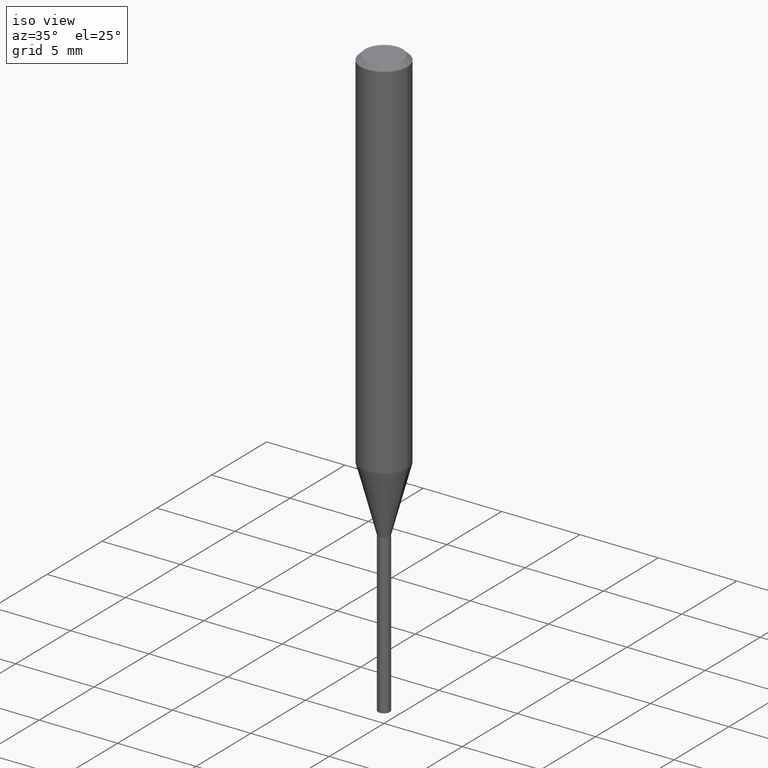
[diagram: clean part render]
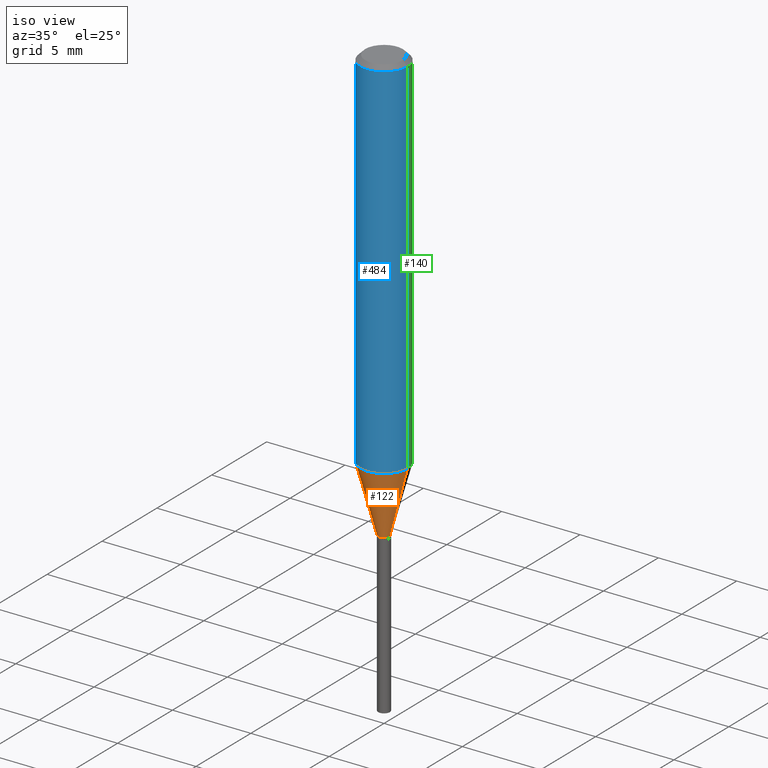
[diagram: same view with three faces highlighted in distinct colors, each labeled with its STEP entity id]
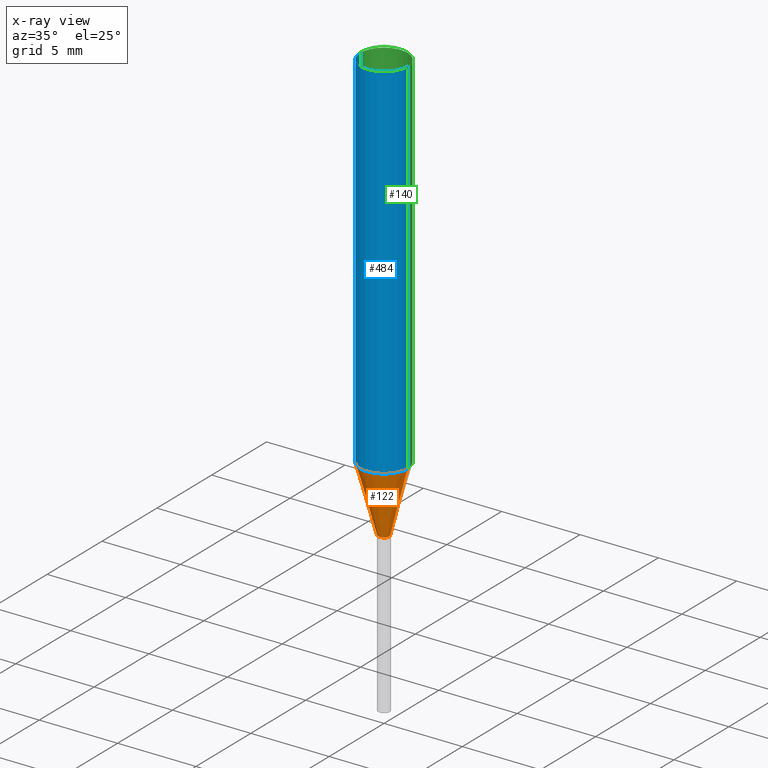
[diagram: x-ray of the same camera — body ghosted, the three highlighted faces saturated]
A machine part, iso view with three faces highlighted in distinct colors.
The next image is the same camera in x-ray (body ghosted, the three faces saturated) — at least one of them is partly hidden behind the body in this view.
Their STEP definitions:

[orange] entity #122 — the highlighted conical surface has half-angle 15 deg.
#6 = VERTEX_POINT ( 'NONE', #464 ) ;
#7 = EDGE_CURVE ( 'NONE', #430, #453, #425, .T. ) ;
#14 = ORIENTED_EDGE ( 'NONE', *, *, #7, .F. ) ;
#21 = ORIENTED_EDGE ( 'NONE', *, *, #226, .T. ) ;
#28 = DIRECTION ( 'NONE',  ( 1.000000000000000000, -6.982962677686268288E-15, 0.000000000000000000 ) ) ;
#33 = DIRECTION ( 'NONE',  ( 1.000000000000000000, -6.982962677686255667E-15, 0.000000000000000000 ) ) ;
#50 = CIRCLE ( 'NONE', #487, 0.01455000000000000043 ) ;
#80 = ORIENTED_EDGE ( 'NONE', *, *, #251, .T. ) ;
#109 = VECTOR ( 'NONE', #416, 39.37007874015748854 ) ;
#113 = CARTESIAN_POINT ( 'NONE',  ( -0.05905000000000010241, -2.806636156120838510E-15, -0.9240237390631849124 ) ) ;
#122 = ADVANCED_FACE ( 'NONE', ( #245 ), #364, .T. ) ;
#130 = DIRECTION ( 'NONE',  ( -2.445468806185136597E-29, 3.491481338843145583E-15, 1.000000000000000000 ) ) ;
#144 = CARTESIAN_POINT ( 'NONE',  ( 2.259671230053572766E-29, -3.226211641587178003E-15, -0.9240237390631849124 ) ) ;
#154 = CIRCLE ( 'NONE', #402, 0.05905000000000010241 ) ;
#170 = DIRECTION ( 'NONE',  ( 0.2588190451025212391, 1.565188264969622362E-15, 0.9659258262890679791 ) ) ;
#187 = DIRECTION ( 'NONE',  ( -2.445468806185136597E-29, 3.491481338843145583E-15, 1.000000000000000000 ) ) ;
#194 = ORIENTED_EDGE ( 'NONE', *, *, #196, .F. ) ;
#196 = EDGE_CURVE ( 'NONE', #453, #6, #154, .T. ) ;
#199 = EDGE_LOOP ( 'NONE', ( #14, #80, #21, #194 ) ) ;
#211 = DIRECTION ( 'NONE',  ( -2.445468806185136597E-29, 3.491481338843145583E-15, 1.000000000000000000 ) ) ;
#213 = CARTESIAN_POINT ( 'NONE',  ( -0.01455000000000000043, -3.702679839419818518E-15, -1.090099999999999847 ) ) ;
#222 = VECTOR ( 'NONE', #170, 39.37007874015748854 ) ;
#226 = EDGE_CURVE ( 'NONE', #305, #6, #377, .T. ) ;
#245 = FACE_OUTER_BOUND ( 'NONE', #199, .T. ) ;
#246 = AXIS2_PLACEMENT_3D ( 'NONE', #330, #130, #373 ) ;
#251 = EDGE_CURVE ( 'NONE', #430, #305, #50, .T. ) ;
#258 = CARTESIAN_POINT ( 'NONE',  ( 2.665805545622417047E-29, -3.806063807472912753E-15, -1.090099999999999847 ) ) ;
#305 = VERTEX_POINT ( 'NONE', #317 ) ;
#317 = CARTESIAN_POINT ( 'NONE',  ( 0.01455000000000000043, -3.907665914433247416E-15, -1.090099999999999847 ) ) ;
#330 = CARTESIAN_POINT ( 'NONE',  ( 2.665805545622417047E-29, -3.806063807472912753E-15, -1.090099999999999847 ) ) ;
#336 = CARTESIAN_POINT ( 'NONE',  ( -0.01455000000000000043, -3.709488228030561988E-15, -1.090099999999999847 ) ) ;
#364 = CONICAL_SURFACE ( 'NONE', #246, 0.01455000000000000043, 0.2617993877991499629 ) ;
#373 = DIRECTION ( 'NONE',  ( 1.000000000000000000, -6.982962677686255667E-15, 0.000000000000000000 ) ) ;
#377 = LINE ( 'NONE', #474, #222 ) ;
#402 = AXIS2_PLACEMENT_3D ( 'NONE', #144, #211, #28 ) ;
#416 = DIRECTION ( 'NONE',  ( -0.2588190451025212391, 5.211531920934549464E-15, 0.9659258262890679791 ) ) ;
#425 = LINE ( 'NONE', #213, #109 ) ;
#430 = VERTEX_POINT ( 'NONE', #336 ) ;
#453 = VERTEX_POINT ( 'NONE', #113 ) ;
#464 = CARTESIAN_POINT ( 'NONE',  ( 0.05905000000000010241, -3.638555587704553318E-15, -0.9240237390631849124 ) ) ;
#474 = CARTESIAN_POINT ( 'NONE',  ( 0.01455000000000000043, -3.907665914433247416E-15, -1.090099999999999847 ) ) ;
#487 = AXIS2_PLACEMENT_3D ( 'NONE', #258, #187, #33 ) ;

[blue] entity #484 — the highlighted cylindrical surface (edge-blend (fillet) strip) has radius 1.4999 mm, axis along (-0, 0, 1).
#6 = VERTEX_POINT ( 'NONE', #464 ) ;
#16 = ORIENTED_EDGE ( 'NONE', *, *, #342, .F. ) ;
#28 = DIRECTION ( 'NONE',  ( 1.000000000000000000, -6.982962677686268288E-15, 0.000000000000000000 ) ) ;
#39 = CARTESIAN_POINT ( 'NONE',  ( 0.000000000000000000, 0.000000000000000000, 0.000000000000000000 ) ) ;
#48 = VERTEX_POINT ( 'NONE', #58 ) ;
#58 = CARTESIAN_POINT ( 'NONE',  ( 0.05904999999999999832, -4.535783407291118600E-16, -0.01181000000000007218 ) ) ;
#84 = DIRECTION ( 'NONE',  ( 1.000000000000000000, -6.982962677686266711E-15, 4.876176775795935793E-29 ) ) ;
#89 = EDGE_LOOP ( 'NONE', ( #16, #231, #145, #361 ) ) ;
#113 = CARTESIAN_POINT ( 'NONE',  ( -0.05905000000000010241, -2.806636156120838510E-15, -0.9240237390631849124 ) ) ;
#144 = CARTESIAN_POINT ( 'NONE',  ( 2.259671230053572766E-29, -3.226211641587178003E-15, -0.9240237390631849124 ) ) ;
#145 = ORIENTED_EDGE ( 'NONE', *, *, #269, .T. ) ;
#154 = CIRCLE ( 'NONE', #402, 0.05905000000000010241 ) ;
#186 = VERTEX_POINT ( 'NONE', #278 ) ;
#196 = EDGE_CURVE ( 'NONE', #453, #6, #154, .T. ) ;
#203 = CYLINDRICAL_SURFACE ( 'NONE', #354, 0.05905000000000005383 ) ;
#211 = DIRECTION ( 'NONE',  ( -2.445468806185136597E-29, 3.491481338843145583E-15, 1.000000000000000000 ) ) ;
#231 = ORIENTED_EDGE ( 'NONE', *, *, #196, .T. ) ;
#269 = EDGE_CURVE ( 'NONE', #6, #48, #279, .T. ) ;
#272 = DIRECTION ( 'NONE',  ( -2.445468806185136597E-29, 3.491481338843145583E-15, 1.000000000000000000 ) ) ;
#273 = DIRECTION ( 'NONE',  ( -2.445468806185136597E-29, 3.491481338843145583E-15, 1.000000000000000000 ) ) ;
#278 = CARTESIAN_POINT ( 'NONE',  ( -0.05904999999999999832, -1.214147532633117781E-15, -0.01181000000000007218 ) ) ;
#279 = LINE ( 'NONE', #433, #339 ) ;
#303 = DIRECTION ( 'NONE',  ( -2.445468806185136877E-29, 3.491481338843145188E-15, 1.000000000000000000 ) ) ;
#306 = LINE ( 'NONE', #415, #451 ) ;
#313 = CIRCLE ( 'NONE', #468, 0.05904999999999999832 ) ;
#326 = DIRECTION ( 'NONE',  ( 1.000000000000000000, -6.982962677686266711E-15, 0.000000000000000000 ) ) ;
#339 = VECTOR ( 'NONE', #303, 39.37007874015748143 ) ;
#341 = FACE_OUTER_BOUND ( 'NONE', #89, .T. ) ;
#342 = EDGE_CURVE ( 'NONE', #453, #186, #306, .T. ) ;
#349 = CARTESIAN_POINT ( 'NONE',  ( 2.888098660104664204E-31, -4.123439461173780263E-17, -0.01181000000000007218 ) ) ;
#354 = AXIS2_PLACEMENT_3D ( 'NONE', #39, #273, #84 ) ;
#357 = EDGE_CURVE ( 'NONE', #186, #48, #313, .T. ) ;
#361 = ORIENTED_EDGE ( 'NONE', *, *, #357, .F. ) ;
#402 = AXIS2_PLACEMENT_3D ( 'NONE', #144, #211, #28 ) ;
#415 = CARTESIAN_POINT ( 'NONE',  ( -0.05905000000000005383, 4.195754854663395423E-16, -2.904631170795524694E-30 ) ) ;
#433 = CARTESIAN_POINT ( 'NONE',  ( 0.05905000000000005383, -4.123439461173744271E-16, 2.879382386107502672E-30 ) ) ;
#451 = VECTOR ( 'NONE', #455, 39.37007874015748143 ) ;
#453 = VERTEX_POINT ( 'NONE', #113 ) ;
#455 = DIRECTION ( 'NONE',  ( -2.445468806185136877E-29, 3.491481338843145188E-15, 1.000000000000000000 ) ) ;
#464 = CARTESIAN_POINT ( 'NONE',  ( 0.05905000000000010241, -3.638555587704553318E-15, -0.9240237390631849124 ) ) ;
#468 = AXIS2_PLACEMENT_3D ( 'NONE', #349, #272, #326 ) ;
#484 = ADVANCED_FACE ( 'NONE', ( #341 ), #203, .T. ) ;

[green] entity #140 — the highlighted cylindrical surface (edge-blend (fillet) strip) has radius 1.4999 mm, axis along (-0, 0, 1).
#6 = VERTEX_POINT ( 'NONE', #464 ) ;
#9 = DIRECTION ( 'NONE',  ( 1.000000000000000000, -6.982962677686266711E-15, 4.876176775795935793E-29 ) ) ;
#20 = ORIENTED_EDGE ( 'NONE', *, *, #282, .T. ) ;
#48 = VERTEX_POINT ( 'NONE', #58 ) ;
#58 = CARTESIAN_POINT ( 'NONE',  ( 0.05904999999999999832, -4.535783407291118600E-16, -0.01181000000000007218 ) ) ;
#78 = EDGE_CURVE ( 'NONE', #48, #186, #125, .T. ) ;
#90 = AXIS2_PLACEMENT_3D ( 'NONE', #210, #485, #299 ) ;
#104 = CARTESIAN_POINT ( 'NONE',  ( 0.000000000000000000, 0.000000000000000000, 0.000000000000000000 ) ) ;
#105 = DIRECTION ( 'NONE',  ( 1.000000000000000000, -6.982962677686266711E-15, 0.000000000000000000 ) ) ;
#107 = DIRECTION ( 'NONE',  ( -2.445468806185136597E-29, 3.491481338843145583E-15, 1.000000000000000000 ) ) ;
#113 = CARTESIAN_POINT ( 'NONE',  ( -0.05905000000000010241, -2.806636156120838510E-15, -0.9240237390631849124 ) ) ;
#125 = CIRCLE ( 'NONE', #162, 0.05904999999999999832 ) ;
#132 = ORIENTED_EDGE ( 'NONE', *, *, #78, .F. ) ;
#140 = ADVANCED_FACE ( 'NONE', ( #200 ), #488, .T. ) ;
#158 = EDGE_LOOP ( 'NONE', ( #20, #315, #132, #268 ) ) ;
#162 = AXIS2_PLACEMENT_3D ( 'NONE', #443, #107, #105 ) ;
#186 = VERTEX_POINT ( 'NONE', #278 ) ;
#200 = FACE_OUTER_BOUND ( 'NONE', #158, .T. ) ;
#210 = CARTESIAN_POINT ( 'NONE',  ( 2.259671230053572766E-29, -3.226211641587178003E-15, -0.9240237390631849124 ) ) ;
#238 = CIRCLE ( 'NONE', #90, 0.05905000000000010241 ) ;
#260 = AXIS2_PLACEMENT_3D ( 'NONE', #104, #304, #9 ) ;
#268 = ORIENTED_EDGE ( 'NONE', *, *, #269, .F. ) ;
#269 = EDGE_CURVE ( 'NONE', #6, #48, #279, .T. ) ;
#278 = CARTESIAN_POINT ( 'NONE',  ( -0.05904999999999999832, -1.214147532633117781E-15, -0.01181000000000007218 ) ) ;
#279 = LINE ( 'NONE', #433, #339 ) ;
#282 = EDGE_CURVE ( 'NONE', #6, #453, #238, .T. ) ;
#299 = DIRECTION ( 'NONE',  ( 1.000000000000000000, -6.982962677686268288E-15, 0.000000000000000000 ) ) ;
#303 = DIRECTION ( 'NONE',  ( -2.445468806185136877E-29, 3.491481338843145188E-15, 1.000000000000000000 ) ) ;
#304 = DIRECTION ( 'NONE',  ( -2.445468806185136597E-29, 3.491481338843145583E-15, 1.000000000000000000 ) ) ;
#306 = LINE ( 'NONE', #415, #451 ) ;
#315 = ORIENTED_EDGE ( 'NONE', *, *, #342, .T. ) ;
#339 = VECTOR ( 'NONE', #303, 39.37007874015748143 ) ;
#342 = EDGE_CURVE ( 'NONE', #453, #186, #306, .T. ) ;
#415 = CARTESIAN_POINT ( 'NONE',  ( -0.05905000000000005383, 4.195754854663395423E-16, -2.904631170795524694E-30 ) ) ;
#433 = CARTESIAN_POINT ( 'NONE',  ( 0.05905000000000005383, -4.123439461173744271E-16, 2.879382386107502672E-30 ) ) ;
#443 = CARTESIAN_POINT ( 'NONE',  ( 2.888098660104664204E-31, -4.123439461173780263E-17, -0.01181000000000007218 ) ) ;
#451 = VECTOR ( 'NONE', #455, 39.37007874015748143 ) ;
#453 = VERTEX_POINT ( 'NONE', #113 ) ;
#455 = DIRECTION ( 'NONE',  ( -2.445468806185136877E-29, 3.491481338843145188E-15, 1.000000000000000000 ) ) ;
#464 = CARTESIAN_POINT ( 'NONE',  ( 0.05905000000000010241, -3.638555587704553318E-15, -0.9240237390631849124 ) ) ;
#485 = DIRECTION ( 'NONE',  ( -2.445468806185136597E-29, 3.491481338843145583E-15, 1.000000000000000000 ) ) ;
#488 = CYLINDRICAL_SURFACE ( 'NONE', #260, 0.05905000000000005383 ) ;